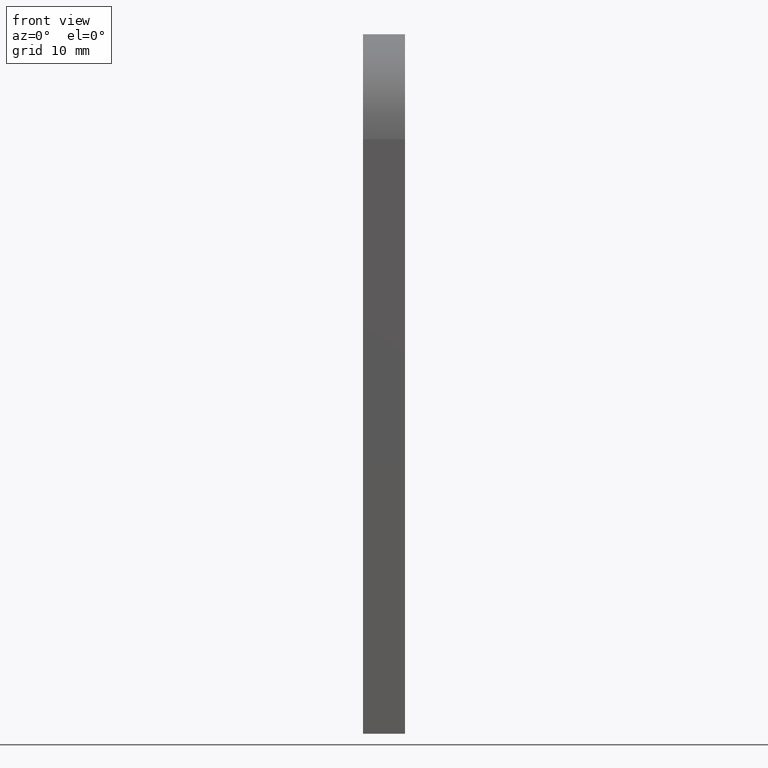
[diagram: clean part render]
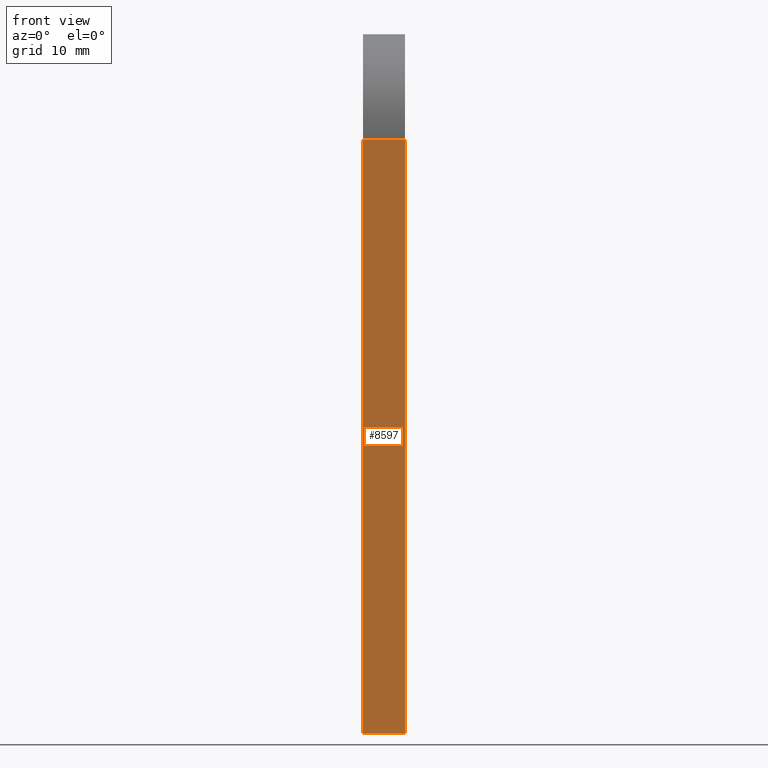
[diagram: same view with one face highlighted and labeled with its STEP entity id]
A machine part, front view. The second image highlights one B-rep face of the part: STEP entity #8597.
In plain terms, the highlighted planar face has unit normal (0, -1, -0).
Its self-contained STEP definition (entity closure, byte-faithful):
#92 = CARTESIAN_POINT ( 'NONE',  ( 3.000000000000000000, -15.00000000000000200, 84.99999999999998600 ) ) ;
#151 = VERTEX_POINT ( 'NONE', #4071 ) ;
#381 = AXIS2_PLACEMENT_3D ( 'NONE', #6847, #6907, #496 ) ;
#400 = CARTESIAN_POINT ( 'NONE',  ( -3.000000000000000000, -15.00000000000000000, -3.061616997868383000E-015 ) ) ;
#496 = DIRECTION ( 'NONE',  ( 0.0000000000000000000, 2.040851148208008500E-017, -1.000000000000000000 ) ) ;
#523 = CARTESIAN_POINT ( 'NONE',  ( 3.000000000000000000, -15.00000000000000000, -3.061616997868383000E-015 ) ) ;
#1861 = CARTESIAN_POINT ( 'NONE',  ( 3.000000000000000000, -15.00000000000000000, -3.061616997868383000E-015 ) ) ;
#1963 = DIRECTION ( 'NONE',  ( 0.0000000000000000000, -2.040851148208008500E-017, 1.000000000000000000 ) ) ;
#2051 = ORIENTED_EDGE ( 'NONE', *, *, #4867, .F. ) ;
#2080 = VERTEX_POINT ( 'NONE', #9323 ) ;
#2423 = EDGE_CURVE ( 'NONE', #3825, #2080, #9807, .T. ) ;
#2473 = DIRECTION ( 'NONE',  ( -1.000000000000000000, -0.0000000000000000000, -0.0000000000000000000 ) ) ;
#2757 = VECTOR ( 'NONE', #1963, 1000.000000000000000 ) ;
#3575 = ORIENTED_EDGE ( 'NONE', *, *, #5622, .F. ) ;
#3773 = EDGE_LOOP ( 'NONE', ( #3575, #2051, #9910, #4203 ) ) ;
#3825 = VERTEX_POINT ( 'NONE', #9297 ) ;
#3890 = LINE ( 'NONE', #523, #4023 ) ;
#3969 = FACE_OUTER_BOUND ( 'NONE', #3773, .T. ) ;
#4023 = VECTOR ( 'NONE', #9321, 1000.000000000000000 ) ;
#4071 = CARTESIAN_POINT ( 'NONE',  ( -3.000000000000000000, -15.00000000000000000, -3.061616997868383000E-015 ) ) ;
#4136 = LINE ( 'NONE', #7798, #10273 ) ;
#4203 = ORIENTED_EDGE ( 'NONE', *, *, #2423, .T. ) ;
#4645 = DIRECTION ( 'NONE',  ( 0.0000000000000000000, -2.040851148208008500E-017, 1.000000000000000000 ) ) ;
#4867 = EDGE_CURVE ( 'NONE', #9608, #151, #3890, .T. ) ;
#4905 = LINE ( 'NONE', #400, #2757 ) ;
#5622 = EDGE_CURVE ( 'NONE', #151, #2080, #4905, .T. ) ;
#6060 = PLANE ( 'NONE',  #381 ) ;
#6136 = EDGE_CURVE ( 'NONE', #9608, #3825, #4136, .T. ) ;
#6847 = CARTESIAN_POINT ( 'NONE',  ( 3.000000000000000000, -15.00000000000000000, -3.061616997868383000E-015 ) ) ;
#6907 = DIRECTION ( 'NONE',  ( 0.0000000000000000000, -1.000000000000000000, -2.040851148208008500E-017 ) ) ;
#7421 = VECTOR ( 'NONE', #2473, 1000.000000000000000 ) ;
#7798 = CARTESIAN_POINT ( 'NONE',  ( 3.000000000000000000, -15.00000000000000000, -3.061616997868383000E-015 ) ) ;
#8597 = ADVANCED_FACE ( 'NONE', ( #3969 ), #6060, .T. ) ;
#9297 = CARTESIAN_POINT ( 'NONE',  ( 3.000000000000000000, -15.00000000000000200, 84.99999999999998600 ) ) ;
#9321 = DIRECTION ( 'NONE',  ( -1.000000000000000000, -0.0000000000000000000, -0.0000000000000000000 ) ) ;
#9323 = CARTESIAN_POINT ( 'NONE',  ( -3.000000000000000000, -15.00000000000000200, 84.99999999999998600 ) ) ;
#9608 = VERTEX_POINT ( 'NONE', #1861 ) ;
#9807 = LINE ( 'NONE', #92, #7421 ) ;
#9910 = ORIENTED_EDGE ( 'NONE', *, *, #6136, .T. ) ;
#10273 = VECTOR ( 'NONE', #4645, 1000.000000000000000 ) ;